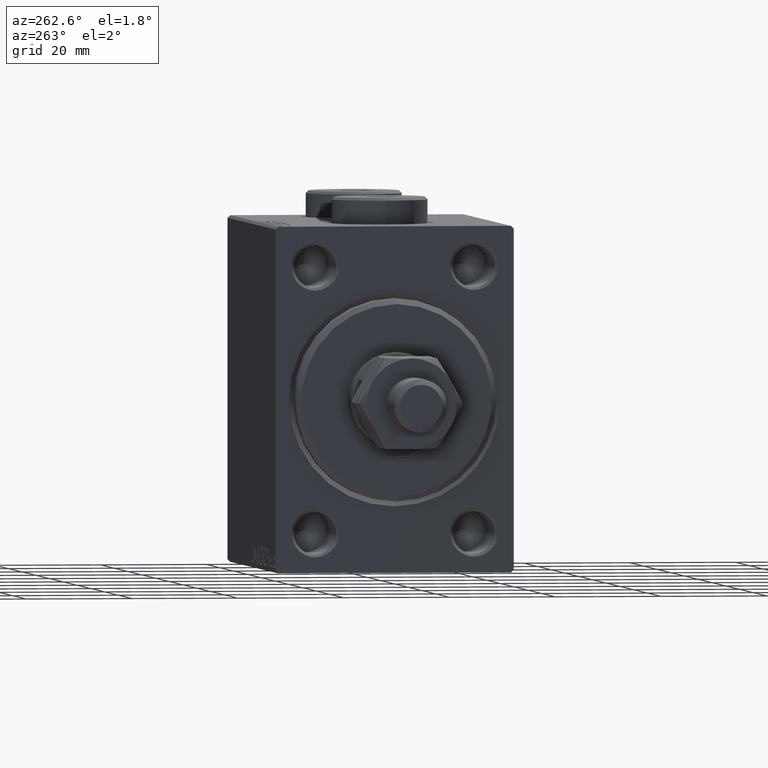
[diagram: clean part render]
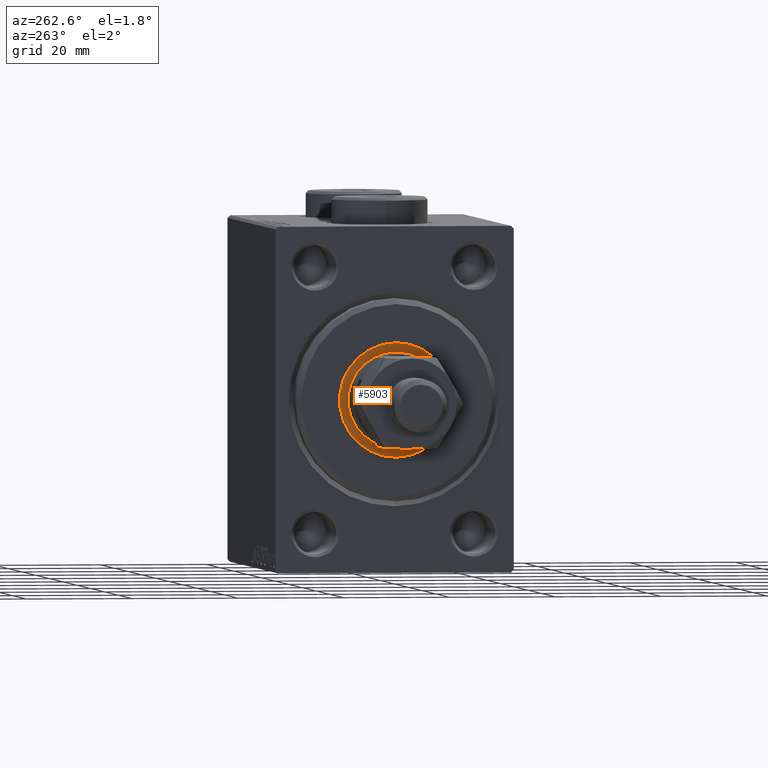
[diagram: same view with one face highlighted and labeled with its STEP entity id]
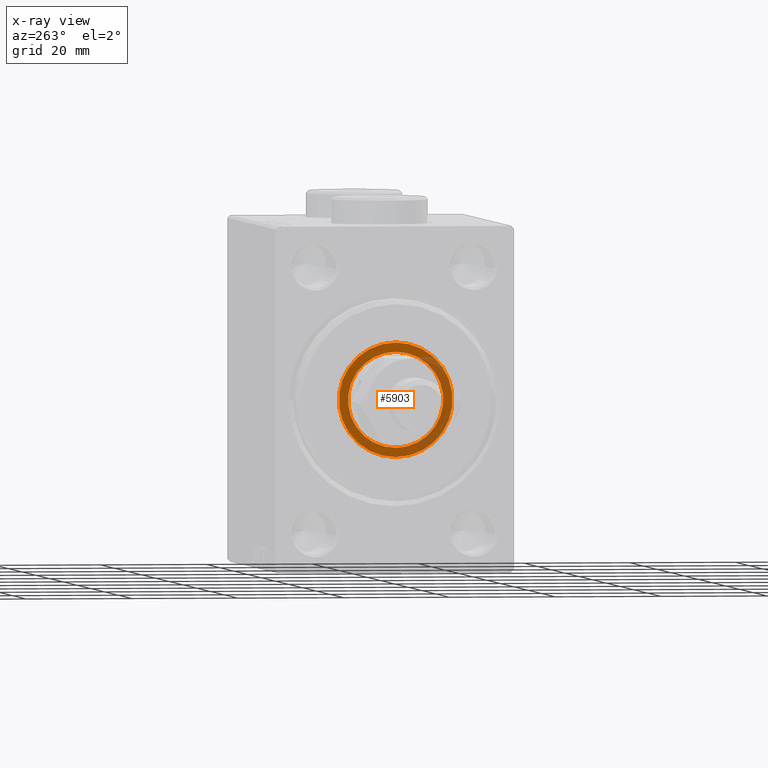
[diagram: x-ray of the same camera — body ghosted, the highlighted face saturated]
A machine part, auxiliary view. The second image highlights one B-rep face of the part: STEP entity #5903.
The next image is the same camera in x-ray: the body ghosted, the highlighted face saturated — about 36% of this face is hidden behind the body in this view.
In plain terms, the highlighted planar face has unit normal (-1, 0, 0).
Its self-contained STEP definition (entity closure, byte-faithful):
#1974 = DIRECTION ( 'NONE',  ( 0.000000000000000000, 0.000000000000000000, -1.000000000000000000 ) ) ;
#2436 = CARTESIAN_POINT ( 'NONE',  ( 1.500000000000000000, 0.000000000000000000, 0.000000000000000000 ) ) ;
#3008 = DIRECTION ( 'NONE',  ( 1.000000000000000000, 0.000000000000000000, 0.000000000000000000 ) ) ;
#3397 = EDGE_CURVE ( 'NONE', #46551, #34036, #33902, .T. ) ;
#3579 = DIRECTION ( 'NONE',  ( 1.000000000000000000, 0.000000000000000000, 0.000000000000000000 ) ) ;
#3796 = CARTESIAN_POINT ( 'NONE',  ( 1.499999999999999556, 0.000000000000000000, 0.000000000000000000 ) ) ;
#4288 = CARTESIAN_POINT ( 'NONE',  ( 1.499999999999999556, 0.000000000000000000, 0.000000000000000000 ) ) ;
#5236 = CIRCLE ( 'NONE', #28094, 10.75000000000000000 ) ;
#5903 = ADVANCED_FACE ( 'NONE', ( #42603, #17822 ), #10417, .T. ) ;
#6998 = CARTESIAN_POINT ( 'NONE',  ( 1.499999999999999556, 1.102182119232617517E-15, 9.000000000000000000 ) ) ;
#7154 = DIRECTION ( 'NONE',  ( 0.000000000000000000, 0.000000000000000000, -1.000000000000000000 ) ) ;
#9286 = CIRCLE ( 'NONE', #41996, 10.75000000000000000 ) ;
#10417 = PLANE ( 'NONE',  #15731 ) ;
#11822 = EDGE_CURVE ( 'NONE', #36266, #12282, #5236, .T. ) ;
#11866 = ORIENTED_EDGE ( 'NONE', *, *, #35251, .F. ) ;
#12282 = VERTEX_POINT ( 'NONE', #43543 ) ;
#13252 = EDGE_LOOP ( 'NONE', ( #22169, #37154 ) ) ;
#15731 = AXIS2_PLACEMENT_3D ( 'NONE', #17350, #3008, #21400 ) ;
#16081 = DIRECTION ( 'NONE',  ( 1.000000000000000000, 0.000000000000000000, 0.000000000000000000 ) ) ;
#17350 = CARTESIAN_POINT ( 'NONE',  ( 1.500000000000000000, 0.000000000000000000, 0.000000000000000000 ) ) ;
#17822 = FACE_OUTER_BOUND ( 'NONE', #13252, .T. ) ;
#21400 = DIRECTION ( 'NONE',  ( 0.000000000000000000, 0.000000000000000000, -1.000000000000000000 ) ) ;
#21746 = DIRECTION ( 'NONE',  ( 0.000000000000000000, 0.000000000000000000, -1.000000000000000000 ) ) ;
#22169 = ORIENTED_EDGE ( 'NONE', *, *, #43974, .T. ) ;
#23632 = EDGE_LOOP ( 'NONE', ( #11866, #35923 ) ) ;
#28094 = AXIS2_PLACEMENT_3D ( 'NONE', #38233, #16081, #1974 ) ;
#28917 = AXIS2_PLACEMENT_3D ( 'NONE', #3796, #43620, #7154 ) ;
#32156 = CARTESIAN_POINT ( 'NONE',  ( 1.499999999999999556, 0.000000000000000000, -9.000000000000000000 ) ) ;
#33902 = CIRCLE ( 'NONE', #46840, 9.000000000000000000 ) ;
#34036 = VERTEX_POINT ( 'NONE', #32156 ) ;
#35251 = EDGE_CURVE ( 'NONE', #34036, #46551, #43364, .T. ) ;
#35350 = DIRECTION ( 'NONE',  ( 0.000000000000000000, 0.000000000000000000, -1.000000000000000000 ) ) ;
#35923 = ORIENTED_EDGE ( 'NONE', *, *, #3397, .F. ) ;
#36266 = VERTEX_POINT ( 'NONE', #41240 ) ;
#37154 = ORIENTED_EDGE ( 'NONE', *, *, #11822, .T. ) ;
#38233 = CARTESIAN_POINT ( 'NONE',  ( 1.500000000000000000, 0.000000000000000000, 0.000000000000000000 ) ) ;
#41240 = CARTESIAN_POINT ( 'NONE',  ( 1.500000000000000000, 1.316495309083404223E-15, -10.75000000000000000 ) ) ;
#41996 = AXIS2_PLACEMENT_3D ( 'NONE', #2436, #43189, #35350 ) ;
#42603 = FACE_BOUND ( 'NONE', #23632, .T. ) ;
#43189 = DIRECTION ( 'NONE',  ( 1.000000000000000000, 0.000000000000000000, 0.000000000000000000 ) ) ;
#43364 = CIRCLE ( 'NONE', #28917, 9.000000000000000000 ) ;
#43543 = CARTESIAN_POINT ( 'NONE',  ( 1.500000000000000000, 0.000000000000000000, 10.75000000000000000 ) ) ;
#43620 = DIRECTION ( 'NONE',  ( 1.000000000000000000, 0.000000000000000000, 0.000000000000000000 ) ) ;
#43974 = EDGE_CURVE ( 'NONE', #12282, #36266, #9286, .T. ) ;
#46551 = VERTEX_POINT ( 'NONE', #6998 ) ;
#46840 = AXIS2_PLACEMENT_3D ( 'NONE', #4288, #3579, #21746 ) ;